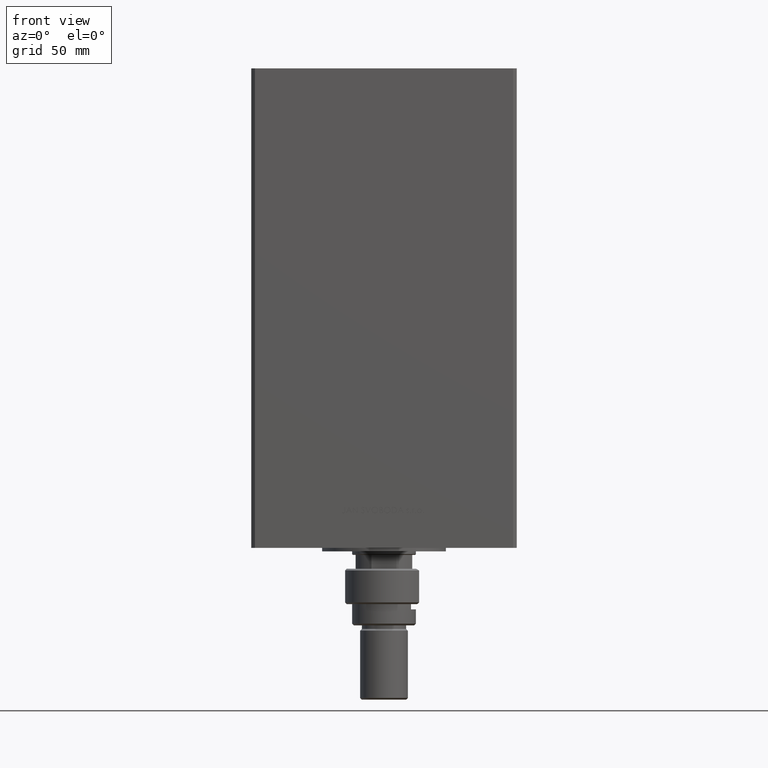
[diagram: clean part render]
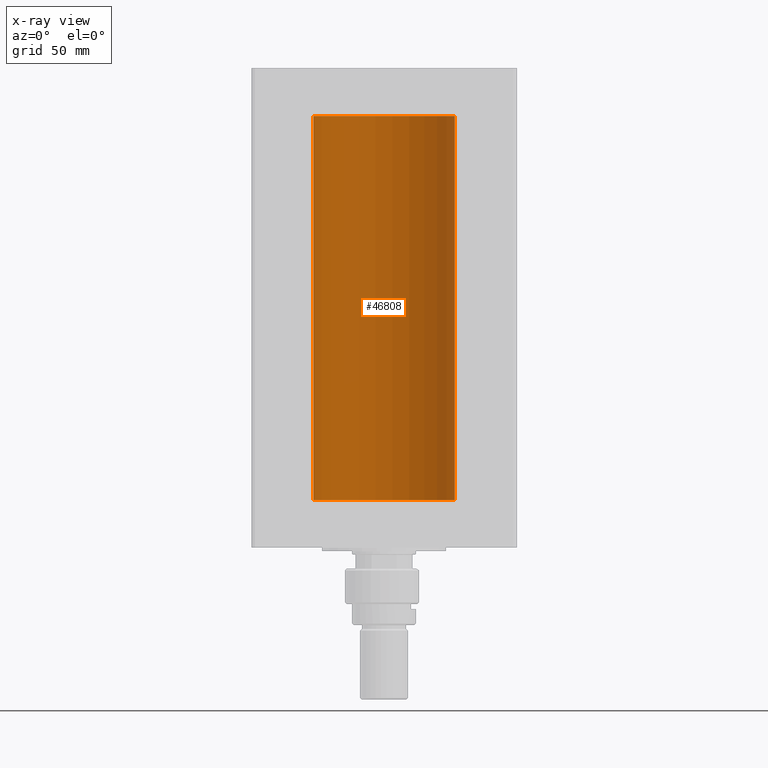
[diagram: x-ray — body ghosted, one internal face saturated and labeled with its STEP entity id]
A machine part, front view, then the same camera in x-ray: the body is ghosted and one INTERNAL B-rep face — a face not visible from any outside direction — is saturated and labeled: STEP entity #46808.
In plain terms, the highlighted cylindrical surface (partial cylindrical patch) has radius 40 mm, axis along (-0, -0, -1).
Its self-contained STEP definition (entity closure, byte-faithful):
#356 = VECTOR ( 'NONE', #1414, 1000.000000000000000 ) ;
#875 = DIRECTION ( 'NONE',  ( -0.000000000000000000, -0.000000000000000000, -1.000000000000000000 ) ) ;
#1414 = DIRECTION ( 'NONE',  ( -0.000000000000000000, -0.000000000000000000, -1.000000000000000000 ) ) ;
#3239 = CARTESIAN_POINT ( 'NONE',  ( 40.00000000000000000, 4.898587196589413026E-15, 217.0000000000000000 ) ) ;
#3681 = CARTESIAN_POINT ( 'NONE',  ( 40.00000000000000000, 4.898587196589413026E-15, 0.000000000000000000 ) ) ;
#3771 = LINE ( 'NONE', #3239, #47006 ) ;
#6248 = CARTESIAN_POINT ( 'NONE',  ( -40.00000000000000000, 0.000000000000000000, 217.0000000000000000 ) ) ;
#6284 = ORIENTED_EDGE ( 'NONE', *, *, #39781, .F. ) ;
#7499 = DIRECTION ( 'NONE',  ( -0.000000000000000000, 0.000000000000000000, 1.000000000000000000 ) ) ;
#8723 = AXIS2_PLACEMENT_3D ( 'NONE', #33395, #13256, #26141 ) ;
#11115 = ORIENTED_EDGE ( 'NONE', *, *, #45061, .T. ) ;
#11843 = VERTEX_POINT ( 'NONE', #3681 ) ;
#12673 = CYLINDRICAL_SURFACE ( 'NONE', #17089, 40.00000000000000000 ) ;
#13256 = DIRECTION ( 'NONE',  ( -0.000000000000000000, 0.000000000000000000, 1.000000000000000000 ) ) ;
#13737 = FACE_OUTER_BOUND ( 'NONE', #46835, .T. ) ;
#15006 = CARTESIAN_POINT ( 'NONE',  ( -40.00000000000000000, 0.000000000000000000, 217.0000000000000000 ) ) ;
#17089 = AXIS2_PLACEMENT_3D ( 'NONE', #25562, #875, #18754 ) ;
#18754 = DIRECTION ( 'NONE',  ( -1.000000000000000000, 0.000000000000000000, 0.000000000000000000 ) ) ;
#25546 = ORIENTED_EDGE ( 'NONE', *, *, #47001, .T. ) ;
#25562 = CARTESIAN_POINT ( 'NONE',  ( 0.000000000000000000, 0.000000000000000000, 217.0000000000000000 ) ) ;
#26141 = DIRECTION ( 'NONE',  ( 1.000000000000000000, 0.000000000000000000, 0.000000000000000000 ) ) ;
#27885 = DIRECTION ( 'NONE',  ( 1.000000000000000000, 0.000000000000000000, 0.000000000000000000 ) ) ;
#28870 = EDGE_CURVE ( 'NONE', #49301, #11843, #3771, .T. ) ;
#31700 = DIRECTION ( 'NONE',  ( -0.000000000000000000, -0.000000000000000000, -1.000000000000000000 ) ) ;
#32542 = ORIENTED_EDGE ( 'NONE', *, *, #28870, .F. ) ;
#33395 = CARTESIAN_POINT ( 'NONE',  ( 0.000000000000000000, 0.000000000000000000, 0.000000000000000000 ) ) ;
#36789 = AXIS2_PLACEMENT_3D ( 'NONE', #47759, #7499, #27885 ) ;
#39781 = EDGE_CURVE ( 'NONE', #11843, #45107, #44742, .T. ) ;
#40256 = CIRCLE ( 'NONE', #36789, 40.00000000000000000 ) ;
#43017 = LINE ( 'NONE', #6248, #356 ) ;
#44742 = CIRCLE ( 'NONE', #8723, 40.00000000000000000 ) ;
#45061 = EDGE_CURVE ( 'NONE', #46991, #45107, #43017, .T. ) ;
#45107 = VERTEX_POINT ( 'NONE', #52921 ) ;
#46808 = ADVANCED_FACE ( 'NONE', ( #13737 ), #12673, .F. ) ;
#46835 = EDGE_LOOP ( 'NONE', ( #32542, #25546, #11115, #6284 ) ) ;
#46991 = VERTEX_POINT ( 'NONE', #15006 ) ;
#47001 = EDGE_CURVE ( 'NONE', #49301, #46991, #40256, .T. ) ;
#47006 = VECTOR ( 'NONE', #31700, 1000.000000000000000 ) ;
#47759 = CARTESIAN_POINT ( 'NONE',  ( 0.000000000000000000, 0.000000000000000000, 217.0000000000000000 ) ) ;
#49301 = VERTEX_POINT ( 'NONE', #51242 ) ;
#51242 = CARTESIAN_POINT ( 'NONE',  ( 40.00000000000000000, 4.898587196589413026E-15, 217.0000000000000000 ) ) ;
#52921 = CARTESIAN_POINT ( 'NONE',  ( -40.00000000000000000, 0.000000000000000000, 0.000000000000000000 ) ) ;